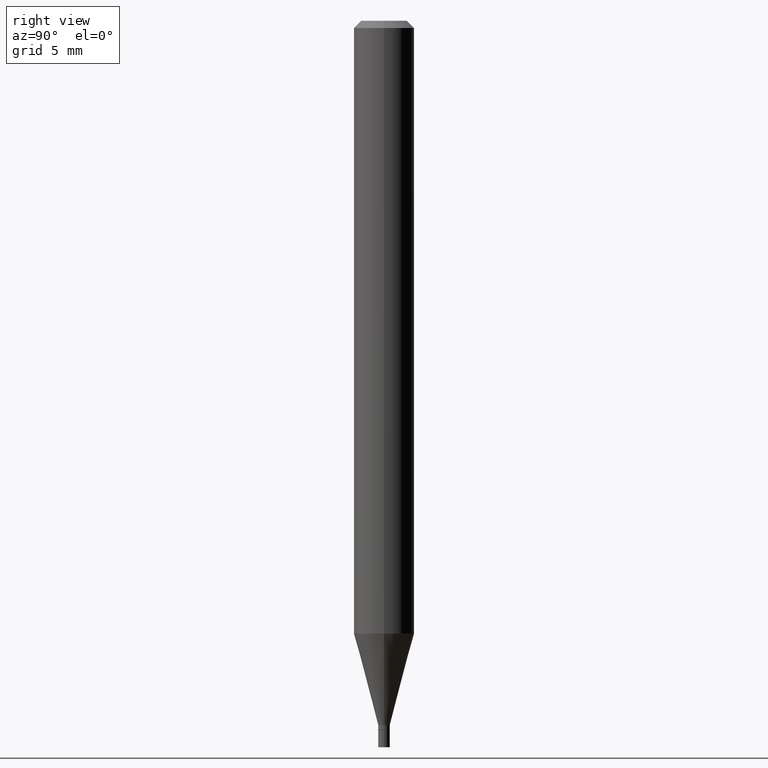
[diagram: clean part render]
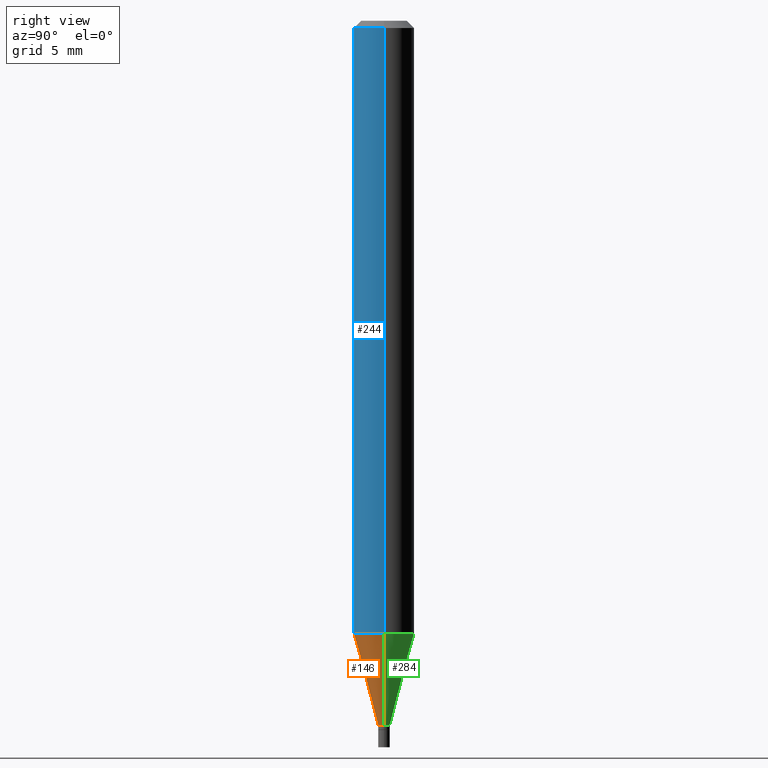
[diagram: same view with three faces highlighted in distinct colors, each labeled with its STEP entity id]
A machine part, right view with three faces highlighted in distinct colors.
Their STEP definitions:

[orange] entity #146 — the highlighted conical surface has half-angle 15 deg.
#4 = CARTESIAN_POINT ( 'NONE',  ( -0.01199999999999992219, -4.482919457413706092E-15, -1.454000000000000181 ) ) ;
#9 = AXIS2_PLACEMENT_3D ( 'NONE', #126, #102, #194 ) ;
#10 = AXIS2_PLACEMENT_3D ( 'NONE', #439, #182, #48 ) ;
#16 = VERTEX_POINT ( 'NONE', #283 ) ;
#27 = ORIENTED_EDGE ( 'NONE', *, *, #114, .T. ) ;
#48 = DIRECTION ( 'NONE',  ( 1.000000000000000000, -6.982962677686296687E-15, 0.000000000000000000 ) ) ;
#57 = DIRECTION ( 'NONE',  ( -0.2588190451025211281, 5.211531920934547886E-15, 0.9659258262890679791 ) ) ;
#63 = CIRCLE ( 'NONE', #9, 0.01199999999999992219 ) ;
#83 = CARTESIAN_POINT ( 'NONE',  ( 0.01199999999999992219, -5.160409418810168864E-15, -1.454000000000000181 ) ) ;
#85 = CIRCLE ( 'NONE', #159, 0.06250000000000000000 ) ;
#88 = FACE_OUTER_BOUND ( 'NONE', #259, .T. ) ;
#90 = EDGE_CURVE ( 'NONE', #94, #167, #63, .T. ) ;
#94 = VERTEX_POINT ( 'NONE', #4 ) ;
#96 = CARTESIAN_POINT ( 'NONE',  ( -0.01199999999999992219, -4.991348738386722228E-15, -1.454000000000000181 ) ) ;
#102 = DIRECTION ( 'NONE',  ( -2.445468806185136597E-29, 3.491481338843145583E-15, 1.000000000000000000 ) ) ;
#104 = ORIENTED_EDGE ( 'NONE', *, *, #296, .F. ) ;
#114 = EDGE_CURVE ( 'NONE', #167, #231, #359, .T. ) ;
#126 = CARTESIAN_POINT ( 'NONE',  ( 3.555711644193189020E-29, -5.076613866677933538E-15, -1.454000000000000181 ) ) ;
#130 = LINE ( 'NONE', #96, #281 ) ;
#146 = ADVANCED_FACE ( 'NONE', ( #88 ), #400, .T. ) ;
#159 = AXIS2_PLACEMENT_3D ( 'NONE', #380, #169, #311 ) ;
#167 = VERTEX_POINT ( 'NONE', #83 ) ;
#169 = DIRECTION ( 'NONE',  ( -2.445468806185136597E-29, 3.491481338843145583E-15, 1.000000000000000000 ) ) ;
#182 = DIRECTION ( 'NONE',  ( -2.445468806185136597E-29, 3.491481338843145583E-15, 1.000000000000000000 ) ) ;
#194 = DIRECTION ( 'NONE',  ( 1.000000000000000000, -6.982962677686296687E-15, 0.000000000000000000 ) ) ;
#231 = VERTEX_POINT ( 'NONE', #324 ) ;
#259 = EDGE_LOOP ( 'NONE', ( #104, #420, #27, #367 ) ) ;
#281 = VECTOR ( 'NONE', #57, 39.37007874015748854 ) ;
#283 = CARTESIAN_POINT ( 'NONE',  ( -0.06250000000000000000, -3.974490176440689955E-15, -1.265531434217771922 ) ) ;
#296 = EDGE_CURVE ( 'NONE', #94, #16, #130, .T. ) ;
#309 = VECTOR ( 'NONE', #318, 39.37007874015748854 ) ;
#311 = DIRECTION ( 'NONE',  ( 1.000000000000000000, -6.982962677686262766E-15, 0.000000000000000000 ) ) ;
#312 = EDGE_CURVE ( 'NONE', #16, #231, #85, .T. ) ;
#318 = DIRECTION ( 'NONE',  ( 0.2588190451025211281, 1.565188264969622954E-15, 0.9659258262890679791 ) ) ;
#320 = CARTESIAN_POINT ( 'NONE',  ( 0.01199999999999992219, -5.160409418810168864E-15, -1.454000000000000181 ) ) ;
#324 = CARTESIAN_POINT ( 'NONE',  ( 0.06250000000000000000, -4.855014553646144241E-15, -1.265531434217771922 ) ) ;
#359 = LINE ( 'NONE', #320, #309 ) ;
#367 = ORIENTED_EDGE ( 'NONE', *, *, #312, .F. ) ;
#380 = CARTESIAN_POINT ( 'NONE',  ( 3.094817645626298552E-29, -4.418579386290752571E-15, -1.265531434217771922 ) ) ;
#400 = CONICAL_SURFACE ( 'NONE', #10, 0.01199999999999992219, 0.2617993877991498519 ) ;
#420 = ORIENTED_EDGE ( 'NONE', *, *, #90, .T. ) ;
#439 = CARTESIAN_POINT ( 'NONE',  ( 3.555711644193189020E-29, -5.076613866677933538E-15, -1.454000000000000181 ) ) ;

[blue] entity #244 — the highlighted cylindrical surface (edge-blend (fillet) strip) has radius 1.5875 mm, axis along (-0, 0, 1).
#3 = VERTEX_POINT ( 'NONE', #265 ) ;
#16 = VERTEX_POINT ( 'NONE', #283 ) ;
#28 = DIRECTION ( 'NONE',  ( -2.445468806185136597E-29, 3.491481338843145583E-15, 1.000000000000000000 ) ) ;
#29 = EDGE_LOOP ( 'NONE', ( #343, #449, #161, #405 ) ) ;
#75 = EDGE_CURVE ( 'NONE', #16, #3, #363, .T. ) ;
#85 = CIRCLE ( 'NONE', #159, 0.06250000000000000000 ) ;
#98 = VECTOR ( 'NONE', #316, 39.37007874015748143 ) ;
#101 = VERTEX_POINT ( 'NONE', #210 ) ;
#159 = AXIS2_PLACEMENT_3D ( 'NONE', #380, #169, #311 ) ;
#161 = ORIENTED_EDGE ( 'NONE', *, *, #446, .T. ) ;
#169 = DIRECTION ( 'NONE',  ( -2.445468806185136597E-29, 3.491481338843145583E-15, 1.000000000000000000 ) ) ;
#176 = CARTESIAN_POINT ( 'NONE',  ( 0.06250000000000000000, -4.364351673553916694E-16, 3.047610484872459871E-30 ) ) ;
#180 = EDGE_CURVE ( 'NONE', #3, #101, #237, .T. ) ;
#181 = DIRECTION ( 'NONE',  ( -2.445468806185136877E-29, 3.491481338843145188E-15, 1.000000000000000000 ) ) ;
#184 = AXIS2_PLACEMENT_3D ( 'NONE', #236, #28, #378 ) ;
#203 = VECTOR ( 'NONE', #181, 39.37007874015748143 ) ;
#210 = CARTESIAN_POINT ( 'NONE',  ( 0.06250000000000000000, -4.888073874380388472E-16, -0.01499999999999999944 ) ) ;
#231 = VERTEX_POINT ( 'NONE', #324 ) ;
#232 = CYLINDRICAL_SURFACE ( 'NONE', #184, 0.06250000000000000000 ) ;
#236 = CARTESIAN_POINT ( 'NONE',  ( 0.000000000000000000, 0.000000000000000000, 0.000000000000000000 ) ) ;
#237 = CIRCLE ( 'NONE', #436, 0.06250000000000000000 ) ;
#244 = ADVANCED_FACE ( 'NONE', ( #442 ), #232, .T. ) ;
#255 = CARTESIAN_POINT ( 'NONE',  ( -0.06250000000000000000, 4.440892098500626162E-16, -3.074334431409316114E-30 ) ) ;
#265 = CARTESIAN_POINT ( 'NONE',  ( -0.06250000000000000000, -1.791386593336637406E-15, -0.01499999999999999944 ) ) ;
#283 = CARTESIAN_POINT ( 'NONE',  ( -0.06250000000000000000, -3.974490176440689955E-15, -1.265531434217771922 ) ) ;
#300 = DIRECTION ( 'NONE',  ( 1.000000000000000000, -6.982962677686266711E-15, 0.000000000000000000 ) ) ;
#311 = DIRECTION ( 'NONE',  ( 1.000000000000000000, -6.982962677686262766E-15, 0.000000000000000000 ) ) ;
#312 = EDGE_CURVE ( 'NONE', #16, #231, #85, .T. ) ;
#316 = DIRECTION ( 'NONE',  ( -2.445468806185136877E-29, 3.491481338843145188E-15, 1.000000000000000000 ) ) ;
#324 = CARTESIAN_POINT ( 'NONE',  ( 0.06250000000000000000, -4.855014553646144241E-15, -1.265531434217771922 ) ) ;
#336 = DIRECTION ( 'NONE',  ( -2.445468806185136597E-29, 3.491481338843145583E-15, 1.000000000000000000 ) ) ;
#343 = ORIENTED_EDGE ( 'NONE', *, *, #75, .F. ) ;
#363 = LINE ( 'NONE', #255, #203 ) ;
#378 = DIRECTION ( 'NONE',  ( 1.000000000000000000, -6.982962677686266711E-15, 4.876176775795935793E-29 ) ) ;
#380 = CARTESIAN_POINT ( 'NONE',  ( 3.094817645626298552E-29, -4.418579386290752571E-15, -1.265531434217771922 ) ) ;
#405 = ORIENTED_EDGE ( 'NONE', *, *, #180, .F. ) ;
#412 = CARTESIAN_POINT ( 'NONE',  ( 3.668203209277705088E-31, -5.237222008264718399E-17, -0.01499999999999999944 ) ) ;
#436 = AXIS2_PLACEMENT_3D ( 'NONE', #412, #336, #300 ) ;
#442 = FACE_OUTER_BOUND ( 'NONE', #29, .T. ) ;
#446 = EDGE_CURVE ( 'NONE', #231, #101, #464, .T. ) ;
#449 = ORIENTED_EDGE ( 'NONE', *, *, #312, .T. ) ;
#464 = LINE ( 'NONE', #176, #98 ) ;

[green] entity #284 — the highlighted conical surface has half-angle 15 deg.
#4 = CARTESIAN_POINT ( 'NONE',  ( -0.01199999999999992219, -4.482919457413706092E-15, -1.454000000000000181 ) ) ;
#6 = ORIENTED_EDGE ( 'NONE', *, *, #279, .F. ) ;
#16 = VERTEX_POINT ( 'NONE', #283 ) ;
#25 = DIRECTION ( 'NONE',  ( -2.445468806185136597E-29, 3.491481338843145583E-15, 1.000000000000000000 ) ) ;
#40 = CIRCLE ( 'NONE', #123, 0.01199999999999992219 ) ;
#55 = FACE_OUTER_BOUND ( 'NONE', #341, .T. ) ;
#57 = DIRECTION ( 'NONE',  ( -0.2588190451025211281, 5.211531920934547886E-15, 0.9659258262890679791 ) ) ;
#69 = DIRECTION ( 'NONE',  ( 1.000000000000000000, -6.982962677686296687E-15, 0.000000000000000000 ) ) ;
#83 = CARTESIAN_POINT ( 'NONE',  ( 0.01199999999999992219, -5.160409418810168864E-15, -1.454000000000000181 ) ) ;
#86 = ORIENTED_EDGE ( 'NONE', *, *, #386, .T. ) ;
#94 = VERTEX_POINT ( 'NONE', #4 ) ;
#96 = CARTESIAN_POINT ( 'NONE',  ( -0.01199999999999992219, -4.991348738386722228E-15, -1.454000000000000181 ) ) ;
#111 = CONICAL_SURFACE ( 'NONE', #140, 0.01199999999999992219, 0.2617993877991498519 ) ;
#114 = EDGE_CURVE ( 'NONE', #167, #231, #359, .T. ) ;
#118 = AXIS2_PLACEMENT_3D ( 'NONE', #416, #373, #199 ) ;
#123 = AXIS2_PLACEMENT_3D ( 'NONE', #406, #230, #69 ) ;
#130 = LINE ( 'NONE', #96, #281 ) ;
#140 = AXIS2_PLACEMENT_3D ( 'NONE', #195, #25, #448 ) ;
#164 = ORIENTED_EDGE ( 'NONE', *, *, #114, .F. ) ;
#167 = VERTEX_POINT ( 'NONE', #83 ) ;
#195 = CARTESIAN_POINT ( 'NONE',  ( 3.555711644193189020E-29, -5.076613866677933538E-15, -1.454000000000000181 ) ) ;
#199 = DIRECTION ( 'NONE',  ( 1.000000000000000000, -6.982962677686262766E-15, 0.000000000000000000 ) ) ;
#230 = DIRECTION ( 'NONE',  ( -2.445468806185136597E-29, 3.491481338843145583E-15, 1.000000000000000000 ) ) ;
#231 = VERTEX_POINT ( 'NONE', #324 ) ;
#279 = EDGE_CURVE ( 'NONE', #231, #16, #315, .T. ) ;
#281 = VECTOR ( 'NONE', #57, 39.37007874015748854 ) ;
#283 = CARTESIAN_POINT ( 'NONE',  ( -0.06250000000000000000, -3.974490176440689955E-15, -1.265531434217771922 ) ) ;
#284 = ADVANCED_FACE ( 'NONE', ( #55 ), #111, .T. ) ;
#296 = EDGE_CURVE ( 'NONE', #94, #16, #130, .T. ) ;
#305 = ORIENTED_EDGE ( 'NONE', *, *, #296, .T. ) ;
#309 = VECTOR ( 'NONE', #318, 39.37007874015748854 ) ;
#315 = CIRCLE ( 'NONE', #118, 0.06250000000000000000 ) ;
#318 = DIRECTION ( 'NONE',  ( 0.2588190451025211281, 1.565188264969622954E-15, 0.9659258262890679791 ) ) ;
#320 = CARTESIAN_POINT ( 'NONE',  ( 0.01199999999999992219, -5.160409418810168864E-15, -1.454000000000000181 ) ) ;
#324 = CARTESIAN_POINT ( 'NONE',  ( 0.06250000000000000000, -4.855014553646144241E-15, -1.265531434217771922 ) ) ;
#341 = EDGE_LOOP ( 'NONE', ( #86, #305, #6, #164 ) ) ;
#359 = LINE ( 'NONE', #320, #309 ) ;
#373 = DIRECTION ( 'NONE',  ( -2.445468806185136597E-29, 3.491481338843145583E-15, 1.000000000000000000 ) ) ;
#386 = EDGE_CURVE ( 'NONE', #167, #94, #40, .T. ) ;
#406 = CARTESIAN_POINT ( 'NONE',  ( 3.555711644193189020E-29, -5.076613866677933538E-15, -1.454000000000000181 ) ) ;
#416 = CARTESIAN_POINT ( 'NONE',  ( 3.094817645626298552E-29, -4.418579386290752571E-15, -1.265531434217771922 ) ) ;
#448 = DIRECTION ( 'NONE',  ( 1.000000000000000000, -6.982962677686296687E-15, 0.000000000000000000 ) ) ;